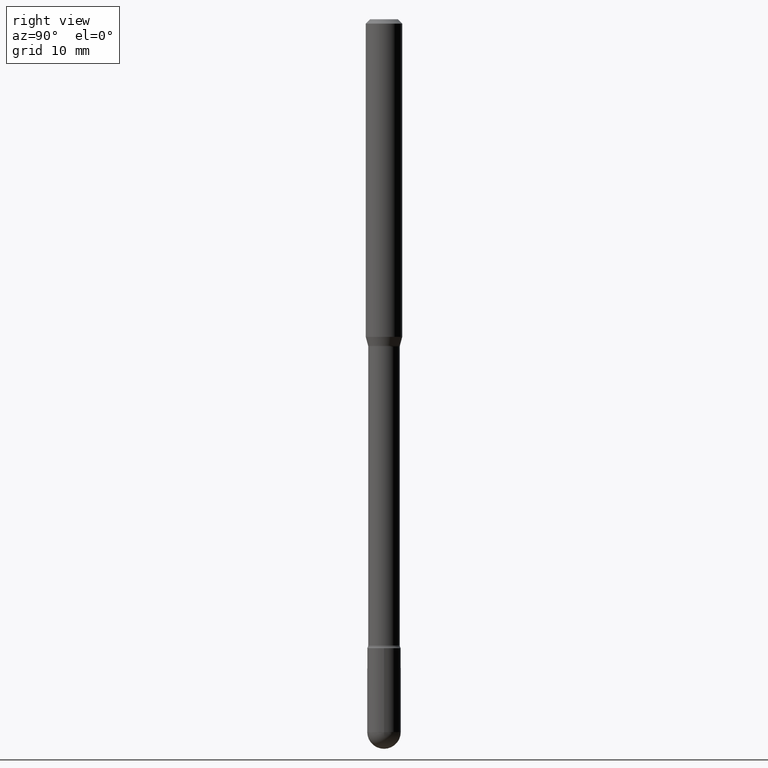
[diagram: clean part render]
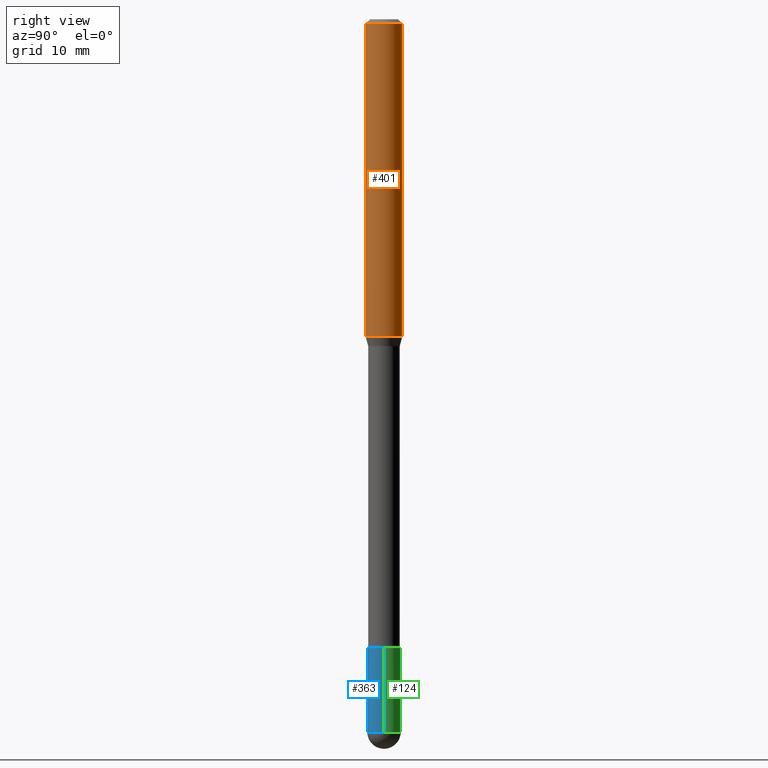
[diagram: same view with three faces highlighted in distinct colors, each labeled with its STEP entity id]
A machine part, right view with three faces highlighted in distinct colors.
Their STEP definitions:

[orange] entity #401 — the highlighted cylindrical surface (edge-blend (fillet) strip) has radius 1.5875 mm, axis along (-0, 0, 1).
#14 = CARTESIAN_POINT ( 'NONE',  ( 4.440892098500625669E-16, 0.06250000000000000000, 2.598604840068803835E-16 ) ) ;
#24 = VERTEX_POINT ( 'NONE', #530 ) ;
#29 = DIRECTION ( 'NONE',  ( -2.445520969400464168E-29, 3.491406638149850481E-15, 1.000000000000000000 ) ) ;
#33 = CIRCLE ( 'NONE', #286, 0.06250000000000000000 ) ;
#36 = EDGE_CURVE ( 'NONE', #516, #161, #439, .T. ) ;
#44 = DIRECTION ( 'NONE',  ( -2.445520969400464168E-29, 3.491406638149850481E-15, 1.000000000000000000 ) ) ;
#51 = DIRECTION ( 'NONE',  ( -2.445520969400463888E-29, 3.491406638149850481E-15, 1.000000000000000000 ) ) ;
#78 = ORIENTED_EDGE ( 'NONE', *, *, #153, .T. ) ;
#88 = AXIS2_PLACEMENT_3D ( 'NONE', #458, #29, #252 ) ;
#104 = CARTESIAN_POINT ( 'NONE',  ( 3.668281454100716606E-31, -5.237109957224805058E-17, -0.01500000000000008271 ) ) ;
#117 = DIRECTION ( 'NONE',  ( -6.982962677686265922E-15, -1.000000000000000000, 3.483106191921935554E-15 ) ) ;
#141 = CARTESIAN_POINT ( 'NONE',  ( -4.364351673553916201E-16, -0.06250000000000000000, 6.962863137756116444E-16 ) ) ;
#142 = CARTESIAN_POINT ( 'NONE',  ( -4.364351673553912750E-16, -0.06250000000000005551, -0.01499999999999986587 ) ) ;
#146 = CARTESIAN_POINT ( 'NONE',  ( 4.440892098500893388E-16, 0.06249999999999993755, -0.01500000000000030129 ) ) ;
#153 = EDGE_CURVE ( 'NONE', #24, #154, #319, .T. ) ;
#154 = VERTEX_POINT ( 'NONE', #146 ) ;
#161 = VERTEX_POINT ( 'NONE', #142 ) ;
#224 = DIRECTION ( 'NONE',  ( -2.445520969400463888E-29, 3.491406638149850481E-15, 1.000000000000000000 ) ) ;
#233 = CARTESIAN_POINT ( 'NONE',  ( -4.364351673553650454E-16, -0.06250000000000381639, -1.088464170676042952 ) ) ;
#252 = DIRECTION ( 'NONE',  ( -6.982962677686265922E-15, -1.000000000000000000, 3.491406638149849692E-15 ) ) ;
#265 = VECTOR ( 'NONE', #51, 39.37007874015748143 ) ;
#271 = EDGE_CURVE ( 'NONE', #516, #24, #278, .T. ) ;
#278 = CIRCLE ( 'NONE', #283, 0.06250000000000000000 ) ;
#283 = AXIS2_PLACEMENT_3D ( 'NONE', #446, #44, #398 ) ;
#286 = AXIS2_PLACEMENT_3D ( 'NONE', #104, #459, #117 ) ;
#309 = ORIENTED_EDGE ( 'NONE', *, *, #36, .F. ) ;
#319 = LINE ( 'NONE', #14, #265 ) ;
#321 = EDGE_CURVE ( 'NONE', #161, #154, #33, .T. ) ;
#336 = CYLINDRICAL_SURFACE ( 'NONE', #88, 0.06250000000000000000 ) ;
#370 = VECTOR ( 'NONE', #224, 39.37007874015748143 ) ;
#382 = EDGE_LOOP ( 'NONE', ( #414, #78, #566, #309 ) ) ;
#398 = DIRECTION ( 'NONE',  ( -6.982962677686265922E-15, -1.000000000000000000, 4.370956789862821150E-15 ) ) ;
#401 = ADVANCED_FACE ( 'NONE', ( #469 ), #336, .T. ) ;
#414 = ORIENTED_EDGE ( 'NONE', *, *, #271, .T. ) ;
#439 = LINE ( 'NONE', #141, #370 ) ;
#446 = CARTESIAN_POINT ( 'NONE',  ( 2.661861953829350212E-29, -3.800271030886609778E-15, -1.088464170676043397 ) ) ;
#458 = CARTESIAN_POINT ( 'NONE',  ( -1.169113584055446105E-44, 1.669184350826100908E-30, 4.780733988912460139E-16 ) ) ;
#459 = DIRECTION ( 'NONE',  ( -2.445520969400464168E-29, 3.491406638149850481E-15, 1.000000000000000000 ) ) ;
#469 = FACE_OUTER_BOUND ( 'NONE', #382, .T. ) ;
#516 = VERTEX_POINT ( 'NONE', #233 ) ;
#530 = CARTESIAN_POINT ( 'NONE',  ( 4.440892098500890430E-16, 0.06249999999999618361, -1.088464170676043619 ) ) ;
#566 = ORIENTED_EDGE ( 'NONE', *, *, #321, .F. ) ;

[blue] entity #363 — the highlighted cylindrical surface (edge-blend (fillet) strip) has radius 1.4605 mm, axis along (-0, 0, 1).
#6 = LINE ( 'NONE', #90, #408 ) ;
#11 = EDGE_CURVE ( 'NONE', #106, #548, #15, .T. ) ;
#15 = CIRCLE ( 'NONE', #534, 0.05750000000000000250 ) ;
#19 = EDGE_CURVE ( 'NONE', #169, #106, #102, .T. ) ;
#23 = CARTESIAN_POINT ( 'NONE',  ( 0.000000000000000000, 0.000000000000000000, 0.000000000000000000 ) ) ;
#42 = EDGE_CURVE ( 'NONE', #548, #99, #6, .T. ) ;
#43 = EDGE_LOOP ( 'NONE', ( #264, #239, #499, #537, #212 ) ) ;
#49 = CIRCLE ( 'NONE', #234, 0.05750000000000000250 ) ;
#52 = DIRECTION ( 'NONE',  ( -2.445468806185136877E-29, 3.491481338843145188E-15, 1.000000000000000000 ) ) ;
#59 = DIRECTION ( 'NONE',  ( -2.445468806185136597E-29, 3.491481338843145583E-15, 1.000000000000000000 ) ) ;
#68 = CYLINDRICAL_SURFACE ( 'NONE', #416, 0.05750000000000000250 ) ;
#89 = CARTESIAN_POINT ( 'NONE',  ( 0.05750000000000000250, -7.925662639173940169E-15, -2.155000000000000249 ) ) ;
#90 = CARTESIAN_POINT ( 'NONE',  ( 0.05750000000000000250, -4.015203539669603161E-16, 2.803801646082662941E-30 ) ) ;
#99 = VERTEX_POINT ( 'NONE', #89 ) ;
#102 = CIRCLE ( 'NONE', #205, 0.05750000000000000250 ) ;
#106 = VERTEX_POINT ( 'NONE', #520 ) ;
#118 = DIRECTION ( 'NONE',  ( -2.445468806185136597E-29, 3.491481338843145583E-15, 1.000000000000000000 ) ) ;
#159 = DIRECTION ( 'NONE',  ( 1.000000000000000000, -6.982962677686265922E-15, 4.876176775795935232E-29 ) ) ;
#169 = VERTEX_POINT ( 'NONE', #317 ) ;
#175 = EDGE_CURVE ( 'NONE', #377, #99, #49, .T. ) ;
#205 = AXIS2_PLACEMENT_3D ( 'NONE', #564, #343, #484 ) ;
#212 = ORIENTED_EDGE ( 'NONE', *, *, #175, .F. ) ;
#218 = EDGE_CURVE ( 'NONE', #169, #377, #323, .T. ) ;
#234 = AXIS2_PLACEMENT_3D ( 'NONE', #280, #320, #235 ) ;
#235 = DIRECTION ( 'NONE',  ( 1.000000000000000000, -6.982962677686273810E-15, 0.000000000000000000 ) ) ;
#239 = ORIENTED_EDGE ( 'NONE', *, *, #19, .T. ) ;
#264 = ORIENTED_EDGE ( 'NONE', *, *, #218, .F. ) ;
#280 = CARTESIAN_POINT ( 'NONE',  ( 5.269985277328969904E-29, -7.524142285206980149E-15, -2.155000000000000249 ) ) ;
#301 = DIRECTION ( 'NONE',  ( 1.000000000000000000, -6.982962677686273810E-15, 0.000000000000000000 ) ) ;
#317 = CARTESIAN_POINT ( 'NONE',  ( -0.05750000000000000250, -7.617480654603624176E-15, -2.442499999999999893 ) ) ;
#320 = DIRECTION ( 'NONE',  ( -2.445468806185136597E-29, 3.491481338843145583E-15, 1.000000000000000000 ) ) ;
#323 = LINE ( 'NONE', #364, #344 ) ;
#343 = DIRECTION ( 'NONE',  ( -2.445468806185136597E-29, 3.491481338843145583E-15, 1.000000000000000000 ) ) ;
#344 = VECTOR ( 'NONE', #52, 39.37007874015748143 ) ;
#363 = ADVANCED_FACE ( 'NONE', ( #550 ), #68, .T. ) ;
#364 = CARTESIAN_POINT ( 'NONE',  ( -0.05750000000000000250, 4.085620730620576246E-16, -2.828387676896570712E-30 ) ) ;
#377 = VERTEX_POINT ( 'NONE', #546 ) ;
#390 = CARTESIAN_POINT ( 'NONE',  ( 5.973057559107196227E-29, -8.527943170124383355E-15, -2.442499999999999893 ) ) ;
#394 = DIRECTION ( 'NONE',  ( -2.445468806185136877E-29, 3.491481338843145188E-15, 1.000000000000000000 ) ) ;
#408 = VECTOR ( 'NONE', #394, 39.37007874015748143 ) ;
#416 = AXIS2_PLACEMENT_3D ( 'NONE', #23, #59, #159 ) ;
#484 = DIRECTION ( 'NONE',  ( 1.000000000000000000, -6.982962677686273810E-15, 0.000000000000000000 ) ) ;
#499 = ORIENTED_EDGE ( 'NONE', *, *, #11, .T. ) ;
#520 = CARTESIAN_POINT ( 'NONE',  ( -4.085620730619980656E-16, -0.05750000000000856509, -2.442499999999999893 ) ) ;
#534 = AXIS2_PLACEMENT_3D ( 'NONE', #390, #118, #301 ) ;
#537 = ORIENTED_EDGE ( 'NONE', *, *, #42, .T. ) ;
#546 = CARTESIAN_POINT ( 'NONE',  ( -0.05750000000000000250, -7.617480654603624176E-15, -2.155000000000000249 ) ) ;
#548 = VERTEX_POINT ( 'NONE', #560 ) ;
#550 = FACE_OUTER_BOUND ( 'NONE', #43, .T. ) ;
#560 = CARTESIAN_POINT ( 'NONE',  ( 0.05750000000000000250, -8.427563081632642561E-15, -2.442499999999999893 ) ) ;
#564 = CARTESIAN_POINT ( 'NONE',  ( 5.973057559107196227E-29, -8.527943170124383355E-15, -2.442499999999999893 ) ) ;

[green] entity #124 — the highlighted cylindrical surface (edge-blend (fillet) strip) has radius 1.4605 mm, axis along (-0, 0, 1).
#6 = LINE ( 'NONE', #90, #408 ) ;
#40 = AXIS2_PLACEMENT_3D ( 'NONE', #290, #372, #505 ) ;
#42 = EDGE_CURVE ( 'NONE', #548, #99, #6, .T. ) ;
#52 = DIRECTION ( 'NONE',  ( -2.445468806185136877E-29, 3.491481338843145188E-15, 1.000000000000000000 ) ) ;
#72 = DIRECTION ( 'NONE',  ( -2.445468806185136597E-29, 3.491481338843145583E-15, 1.000000000000000000 ) ) ;
#89 = CARTESIAN_POINT ( 'NONE',  ( 0.05750000000000000250, -7.925662639173940169E-15, -2.155000000000000249 ) ) ;
#90 = CARTESIAN_POINT ( 'NONE',  ( 0.05750000000000000250, -4.015203539669603161E-16, 2.803801646082662941E-30 ) ) ;
#96 = CIRCLE ( 'NONE', #40, 0.05750000000000000250 ) ;
#99 = VERTEX_POINT ( 'NONE', #89 ) ;
#121 = ORIENTED_EDGE ( 'NONE', *, *, #375, .F. ) ;
#124 = ADVANCED_FACE ( 'NONE', ( #447 ), #138, .T. ) ;
#138 = CYLINDRICAL_SURFACE ( 'NONE', #479, 0.05750000000000000250 ) ;
#163 = ORIENTED_EDGE ( 'NONE', *, *, #381, .T. ) ;
#169 = VERTEX_POINT ( 'NONE', #317 ) ;
#173 = AXIS2_PLACEMENT_3D ( 'NONE', #279, #194, #361 ) ;
#194 = DIRECTION ( 'NONE',  ( -2.445468806185136597E-29, 3.491481338843145583E-15, 1.000000000000000000 ) ) ;
#198 = ORIENTED_EDGE ( 'NONE', *, *, #240, .T. ) ;
#218 = EDGE_CURVE ( 'NONE', #169, #377, #323, .T. ) ;
#240 = EDGE_CURVE ( 'NONE', #303, #169, #415, .T. ) ;
#248 = ORIENTED_EDGE ( 'NONE', *, *, #42, .F. ) ;
#276 = CARTESIAN_POINT ( 'NONE',  ( 0.000000000000000000, 0.000000000000000000, 0.000000000000000000 ) ) ;
#279 = CARTESIAN_POINT ( 'NONE',  ( 5.973057559107196227E-29, -8.527943170124383355E-15, -2.442499999999999893 ) ) ;
#290 = CARTESIAN_POINT ( 'NONE',  ( 5.269985277328969904E-29, -7.524142285206980149E-15, -2.155000000000000249 ) ) ;
#295 = DIRECTION ( 'NONE',  ( 1.000000000000000000, -6.982962677686273810E-15, 0.000000000000000000 ) ) ;
#303 = VERTEX_POINT ( 'NONE', #379 ) ;
#317 = CARTESIAN_POINT ( 'NONE',  ( -0.05750000000000000250, -7.617480654603624176E-15, -2.442499999999999893 ) ) ;
#323 = LINE ( 'NONE', #364, #344 ) ;
#344 = VECTOR ( 'NONE', #52, 39.37007874015748143 ) ;
#355 = AXIS2_PLACEMENT_3D ( 'NONE', #421, #72, #295 ) ;
#356 = DIRECTION ( 'NONE',  ( 1.000000000000000000, -6.982962677686265922E-15, 4.876176775795935232E-29 ) ) ;
#361 = DIRECTION ( 'NONE',  ( 1.000000000000000000, -6.982962677686273810E-15, 0.000000000000000000 ) ) ;
#364 = CARTESIAN_POINT ( 'NONE',  ( -0.05750000000000000250, 4.085620730620576246E-16, -2.828387676896570712E-30 ) ) ;
#372 = DIRECTION ( 'NONE',  ( -2.445468806185136597E-29, 3.491481338843145583E-15, 1.000000000000000000 ) ) ;
#375 = EDGE_CURVE ( 'NONE', #99, #377, #96, .T. ) ;
#377 = VERTEX_POINT ( 'NONE', #546 ) ;
#379 = CARTESIAN_POINT ( 'NONE',  ( 4.015203539670203189E-16, 0.05749999999999150929, -2.442500000000000338 ) ) ;
#381 = EDGE_CURVE ( 'NONE', #548, #303, #481, .T. ) ;
#394 = DIRECTION ( 'NONE',  ( -2.445468806185136877E-29, 3.491481338843145188E-15, 1.000000000000000000 ) ) ;
#408 = VECTOR ( 'NONE', #394, 39.37007874015748143 ) ;
#415 = CIRCLE ( 'NONE', #173, 0.05750000000000000250 ) ;
#421 = CARTESIAN_POINT ( 'NONE',  ( 5.973057559107196227E-29, -8.527943170124383355E-15, -2.442499999999999893 ) ) ;
#447 = FACE_OUTER_BOUND ( 'NONE', #478, .T. ) ;
#450 = DIRECTION ( 'NONE',  ( -2.445468806185136597E-29, 3.491481338843145583E-15, 1.000000000000000000 ) ) ;
#478 = EDGE_LOOP ( 'NONE', ( #198, #482, #121, #248, #163 ) ) ;
#479 = AXIS2_PLACEMENT_3D ( 'NONE', #276, #450, #356 ) ;
#481 = CIRCLE ( 'NONE', #355, 0.05750000000000000250 ) ;
#482 = ORIENTED_EDGE ( 'NONE', *, *, #218, .T. ) ;
#505 = DIRECTION ( 'NONE',  ( 1.000000000000000000, -6.982962677686273810E-15, 0.000000000000000000 ) ) ;
#546 = CARTESIAN_POINT ( 'NONE',  ( -0.05750000000000000250, -7.617480654603624176E-15, -2.155000000000000249 ) ) ;
#548 = VERTEX_POINT ( 'NONE', #560 ) ;
#560 = CARTESIAN_POINT ( 'NONE',  ( 0.05750000000000000250, -8.427563081632642561E-15, -2.442499999999999893 ) ) ;